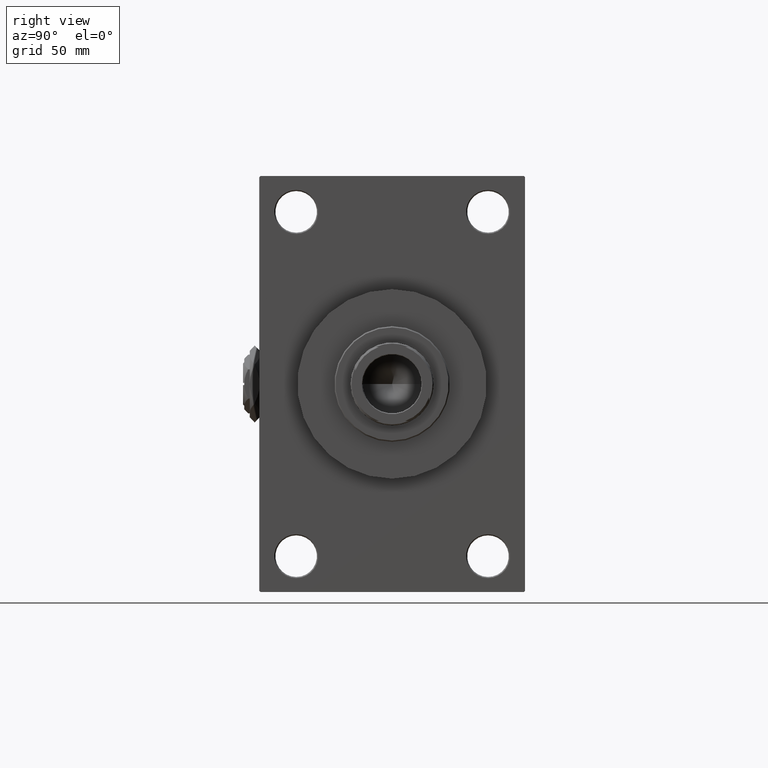
[diagram: clean part render]
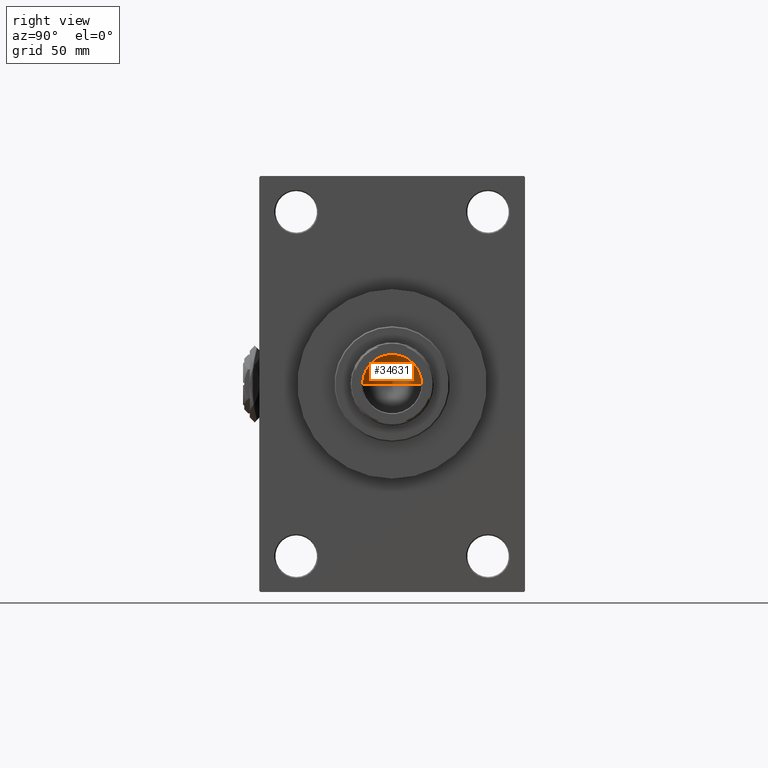
[diagram: same view with one face highlighted and labeled with its STEP entity id]
A machine part, right view. The second image highlights one B-rep face of the part: STEP entity #34631.
In plain terms, the highlighted conical surface has half-angle 59 deg.
Its self-contained STEP definition (entity closure, byte-faithful):
#2012 = DIRECTION ( 'NONE',  ( -0.000000000000000000, -0.000000000000000000, 1.000000000000000000 ) ) ;
#2410 = LINE ( 'NONE', #25457, #6694 ) ;
#6694 = VECTOR ( 'NONE', #45384, 1000.000000000000000 ) ;
#8958 = VERTEX_POINT ( 'NONE', #12082 ) ;
#9459 = ORIENTED_EDGE ( 'NONE', *, *, #17490, .T. ) ;
#10048 = CONICAL_SURFACE ( 'NONE', #37981, 12.74999999999998934, 1.029744258676653423 ) ;
#12082 = CARTESIAN_POINT ( 'NONE',  ( -1.410643066818227497E-14, 0.000000000000000000, 113.3390271073986071 ) ) ;
#12405 = ORIENTED_EDGE ( 'NONE', *, *, #26259, .F. ) ;
#12794 = DIRECTION ( 'NONE',  ( 1.000000000000000000, 0.000000000000000000, 0.000000000000000000 ) ) ;
#13040 = CARTESIAN_POINT ( 'NONE',  ( 0.000000000000000000, 0.000000000000000000, 121.0000000000000142 ) ) ;
#14202 = VERTEX_POINT ( 'NONE', #21017 ) ;
#14652 = VERTEX_POINT ( 'NONE', #24423 ) ;
#16472 = CARTESIAN_POINT ( 'NONE',  ( -12.74999999999998934, 1.561424668912873928E-15, 121.0000000000000142 ) ) ;
#17490 = EDGE_CURVE ( 'NONE', #14652, #14202, #36754, .T. ) ;
#20556 = DIRECTION ( 'NONE',  ( -0.000000000000000000, -0.000000000000000000, 1.000000000000000000 ) ) ;
#21017 = CARTESIAN_POINT ( 'NONE',  ( 12.74999999999998934, 0.000000000000000000, 121.0000000000000142 ) ) ;
#24423 = CARTESIAN_POINT ( 'NONE',  ( -12.74999999999998934, 1.561424668912873928E-15, 121.0000000000000142 ) ) ;
#25457 = CARTESIAN_POINT ( 'NONE',  ( 12.74999999999998934, 0.000000000000000000, 121.0000000000000142 ) ) ;
#26259 = EDGE_CURVE ( 'NONE', #8958, #14202, #2410, .T. ) ;
#26620 = EDGE_LOOP ( 'NONE', ( #12405, #49246, #9459 ) ) ;
#27653 = VECTOR ( 'NONE', #31979, 1000.000000000000000 ) ;
#31979 = DIRECTION ( 'NONE',  ( -0.8571673007021117785, 1.049727191138617956E-16, 0.5150380749100550437 ) ) ;
#32060 = FACE_OUTER_BOUND ( 'NONE', #26620, .T. ) ;
#34631 = ADVANCED_FACE ( 'NONE', ( #32060 ), #10048, .F. ) ;
#36754 = CIRCLE ( 'NONE', #41518, 12.74999999999998934 ) ;
#37981 = AXIS2_PLACEMENT_3D ( 'NONE', #13040, #2012, #12794 ) ;
#40025 = DIRECTION ( 'NONE',  ( 1.000000000000000000, 0.000000000000000000, 0.000000000000000000 ) ) ;
#41518 = AXIS2_PLACEMENT_3D ( 'NONE', #47265, #20556, #40025 ) ;
#45384 = DIRECTION ( 'NONE',  ( 0.8571673007021117785, 0.000000000000000000, 0.5150380749100550437 ) ) ;
#46680 = LINE ( 'NONE', #16472, #27653 ) ;
#46723 = EDGE_CURVE ( 'NONE', #8958, #14652, #46680, .T. ) ;
#47265 = CARTESIAN_POINT ( 'NONE',  ( 0.000000000000000000, 0.000000000000000000, 121.0000000000000142 ) ) ;
#49246 = ORIENTED_EDGE ( 'NONE', *, *, #46723, .T. ) ;